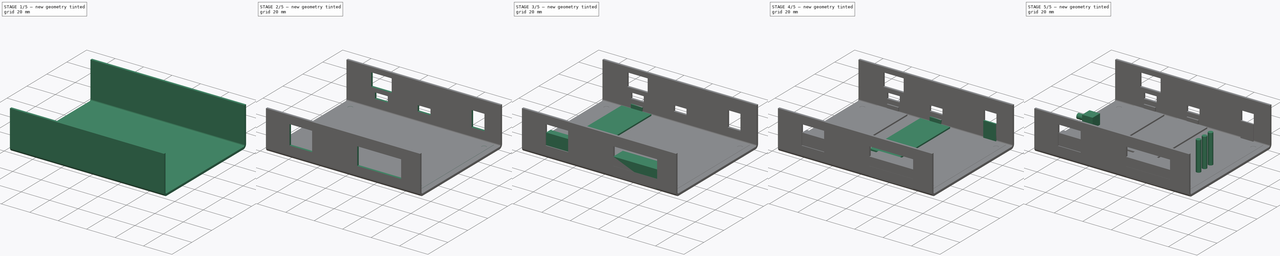
[diagram: build sequence overview — one tinted view per stage of 5, left to right]
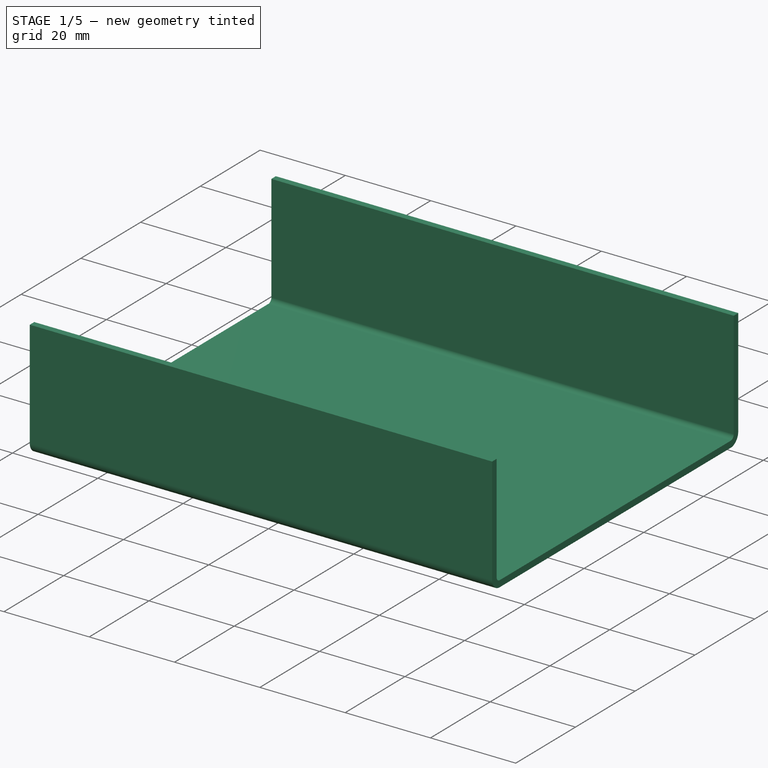
[diagram: stage 1 of 5 — iso view after this stage's code; geometry added in this stage tinted green]
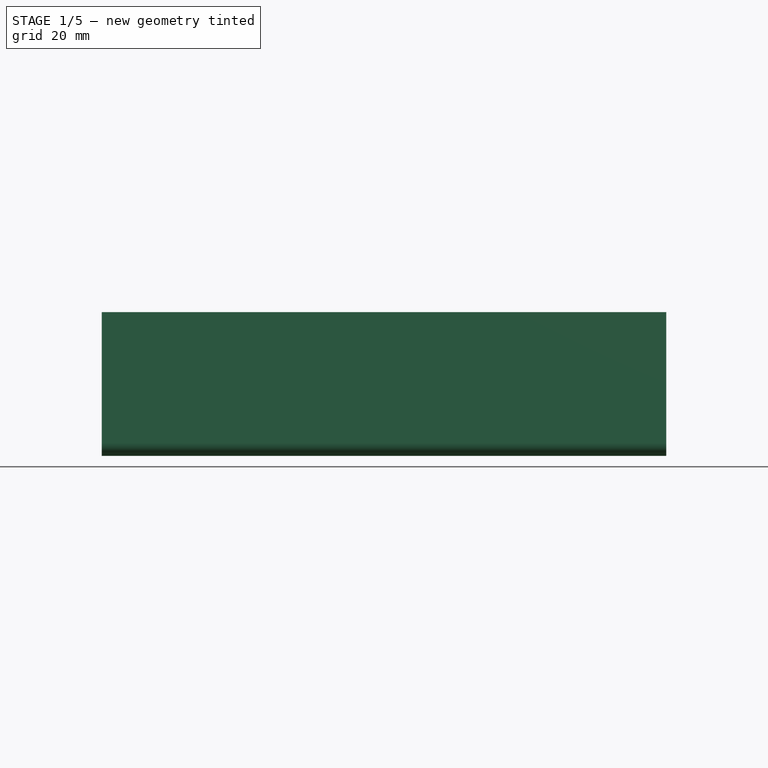
[diagram: stage 1 of 5 — front view after this stage's code; geometry added in this stage tinted green]
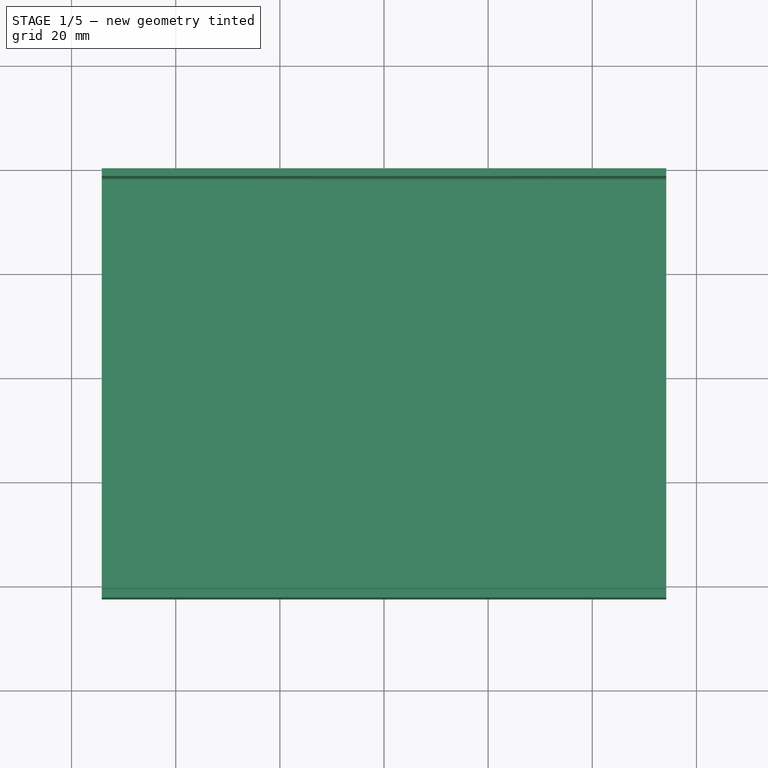
[diagram: stage 1 of 5 — top view after this stage's code; geometry added in this stage tinted green]
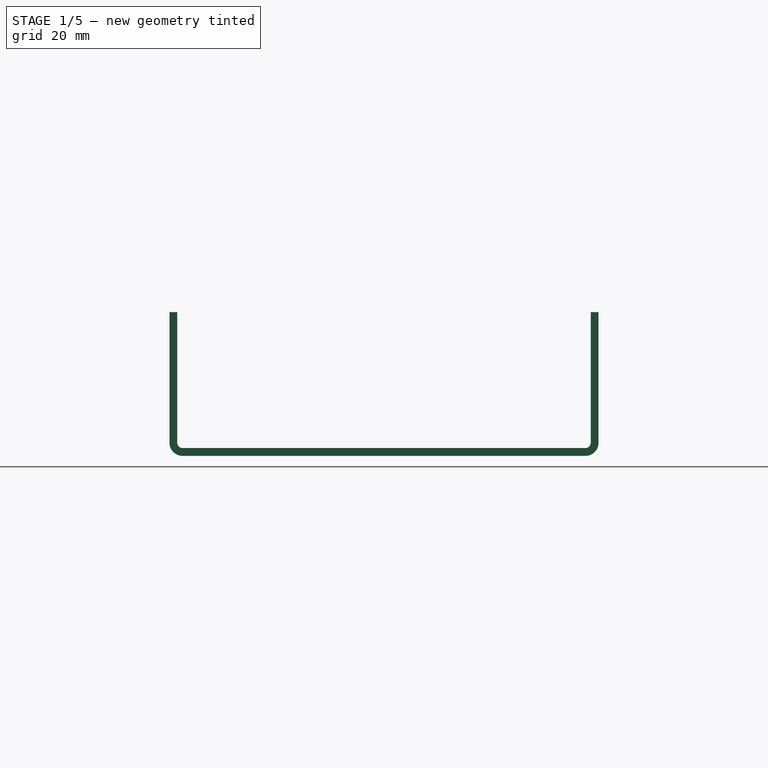
[diagram: stage 1 of 5 — right view after this stage's code; geometry added in this stage tinted green]
FCSTD DOCUMENT  (FreeCAD 0.20R29603 (Git))
Label: winners-case-v2.1
License: All rights reserved
LicenseURL: http://en.wikipedia.org/wiki/All_rights_reserved
objects: Sketcher::SketchObject×14, PartDesign::Pad×12, PartDesign::Body×3, App::Part×3, PartDesign::FeaturePython×2, PartDesign::Pocket×2, Spreadsheet::Sheet×1
note: 47 computed .brp shape members not serialized (recipe doc carries the construction recipe); baked Part::Feature solids carry a one-line shape summary decoded from their .brp

FEATURE [PartDesign::Body] Body
  Group = -> [Sketch,Pad,Sketch001,Pad001,Sketch002,Pad002,Sketch003,Pad003,Sketch004,Pad004,Sketch005,Pad005,Sketch006,Pad006,Sketch007,Pad007,Sketch008,Pad008,Sketch009,Pad009,Sketch010,Pad010]
  Origin = -> Origin
  Tip = -> Pad010
FEATURE [App::Part] Part001  label="pcb2"
  Group = -> [Body]
  Origin = -> Origin002
  Placement = pos=(0,0,6.5) rot=(0,0,1;0rad)
  expr: .Placement.Base.z = <<fig>>.sheet_thk + <<fig>>.standoff_h
FEATURE [Sketcher::SketchObject] Sketch011
  FullyConstrained = true
  MapMode = 5
  Support = -> [XY_Plane004]
  expr: Constraints[10] = <<fig>>.pcb_h2 + <<fig>>.rj45_y_ext - <<fig>>.sheet_thk
  expr: Constraints[8] = <<fig>>.pcb_w2 + <<fig>>.pb_ext - <<fig>>.sheet_thk * 0.8
  expr: Constraints[9] = <<fig>>.pcb_h2 + <<fig>>.margin
  sketch-geometry (5):
    g0: LineSegment StartX=54.2 StartY=-41 StartZ=0 EndX=54.2 EndY=38.4 EndZ=0
    g1: LineSegment StartX=54.2 StartY=38.4 StartZ=0 EndX=-54.2 EndY=38.4 EndZ=0
    g2: LineSegment StartX=-54.2 StartY=38.4 StartZ=0 EndX=-54.2 EndY=-41 EndZ=0
    g3: LineSegment StartX=-54.2 StartY=-41 StartZ=0 EndX=54.2 EndY=-41 EndZ=0
    g4: GeomPoint X=0 Y=0 Z=0
  constraints (12):
    c: Coincident(g0,g1)
    c: Coincident(g1,g2)
    c: Coincident(g2,g3)
    c: Coincident(g3,g0)
    c: Horizontal(g1)
    c: Vertical(g0)
    c: Vertical(g2)
    c: Coincident(g4,g-1)
    c: DistanceX(g1,g4) = 54.2
    c: DistanceY(g4,g1) = 38.4
    c: DistanceY(g2,g4) = 41
    c: Symmetric(g2,g0,g-2)
FEATURE [PartDesign::Pad] Pad011  label="base"
  Direction = (0,0,1)
  Length = 1.5
  Length2 = 10
  Profile = -> Sketch011
  ReferenceAxis = -> Sketch011 [N_Axis]
  Type = 0
  expr: Length = <<fig>>.sheet_thk
FEATURE [PartDesign::FeaturePython] Bend  # WARN: FeaturePython — macro-defined, semantics opaque (R4)
  AutoMiter = true
  BaseFeature = -> Pad011
  BendType = 2
  LengthList = [25.1]
  LengthSpec = 0
  ReliefFactor = 0.7
  UseReliefFactor = false
  angle = 90
  baseObject = -> Pad011 [Edge7]
  bendAList = [90]
  extend1 = 0
  extend2 = 0
  gap1 = 0
  gap2 = 0
  invert = true
  kfactor = 0.5
  length = 25.1
  maxExtendDist = 5
  minGap = 0.1
  minReliefGap = 1
  miterangle1 = 0
  miterangle2 = 0
  offset = 0
  radius = 1
  reliefType = 0
  reliefd = 1
  reliefw = 0.8
  sketchflip = false
  sketchinvert = false
  unfold = false
  expr: length = <<fig>>.sheet_thk + <<fig>>.standoff_h + <<fig>>.pcb_thk + <<fig>>.led_tall - <<fig>>.sheet_thk - <<fig>>.sheet_bend_add
FEATURE [PartDesign::FeaturePython] Bend001  # WARN: FeaturePython — macro-defined, semantics opaque (R4)
  AutoMiter = true
  BaseFeature = -> Bend
  BendType = 2
  LengthList = [25.1]
  LengthSpec = 0
  ReliefFactor = 0.7
  UseReliefFactor = false
  angle = 90
  baseObject = -> Bend [Edge24]
  bendAList = [90]
  extend1 = 0
  extend2 = 0
  gap1 = 0
  gap2 = 0
  invert = true
  kfactor = 0.5
  length = 25.1
  maxExtendDist = 5
  minGap = 0.1
  minReliefGap = 1
  miterangle1 = 0
  miterangle2 = 0
  offset = 0
  radius = 1
  reliefType = 0
  reliefd = 1
  reliefw = 0.8
  sketchflip = false
  sketchinvert = false
  unfold = false
  expr: length = <<fig>>.sheet_thk + <<fig>>.standoff_h + <<fig>>.pcb_thk + <<fig>>.led_tall - <<fig>>.sheet_thk - <<fig>>.sheet_bend_add
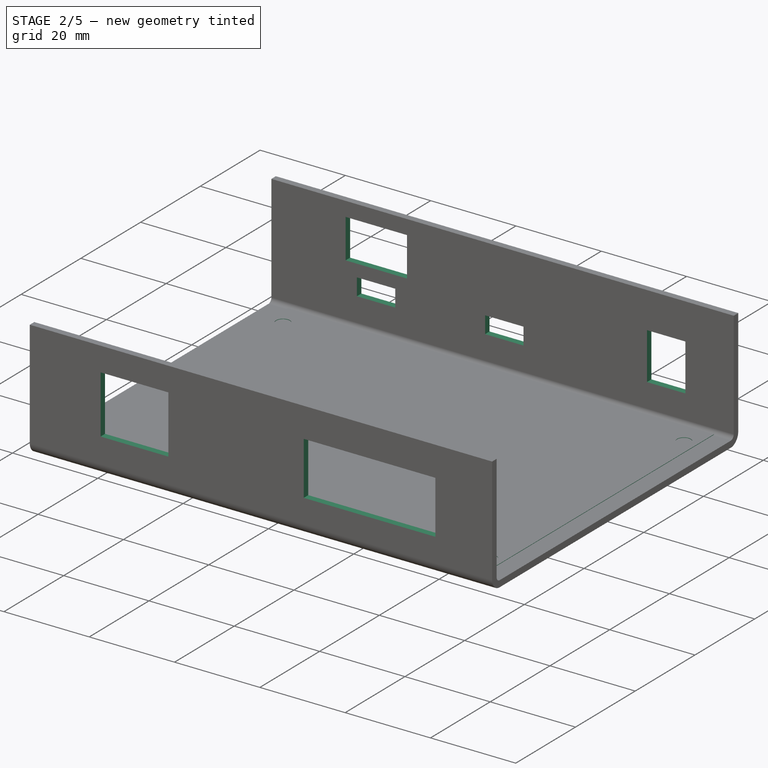
[diagram: stage 2 of 5 — iso view after this stage's code; geometry added in this stage tinted green]
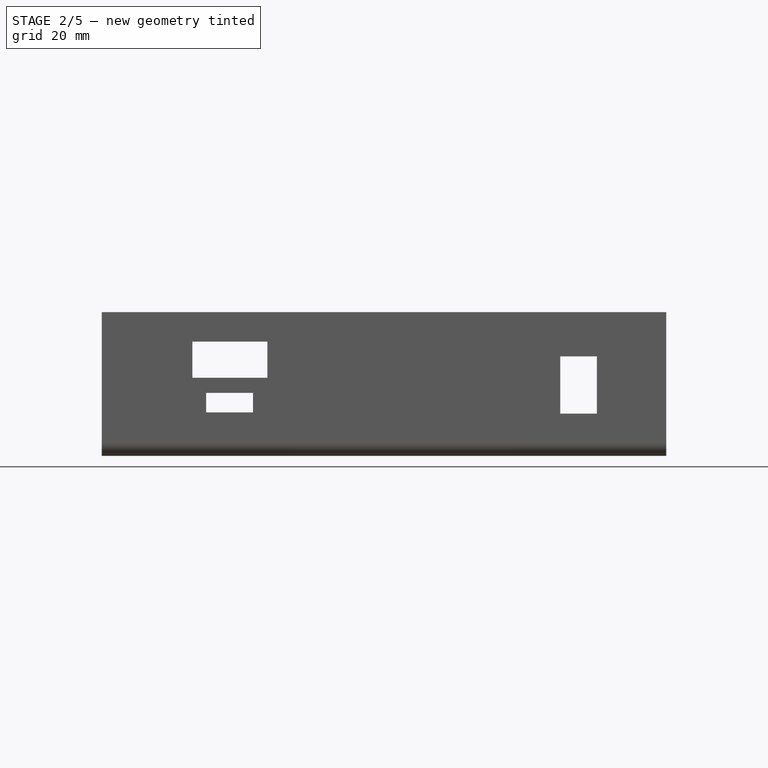
[diagram: stage 2 of 5 — front view after this stage's code; geometry added in this stage tinted green]
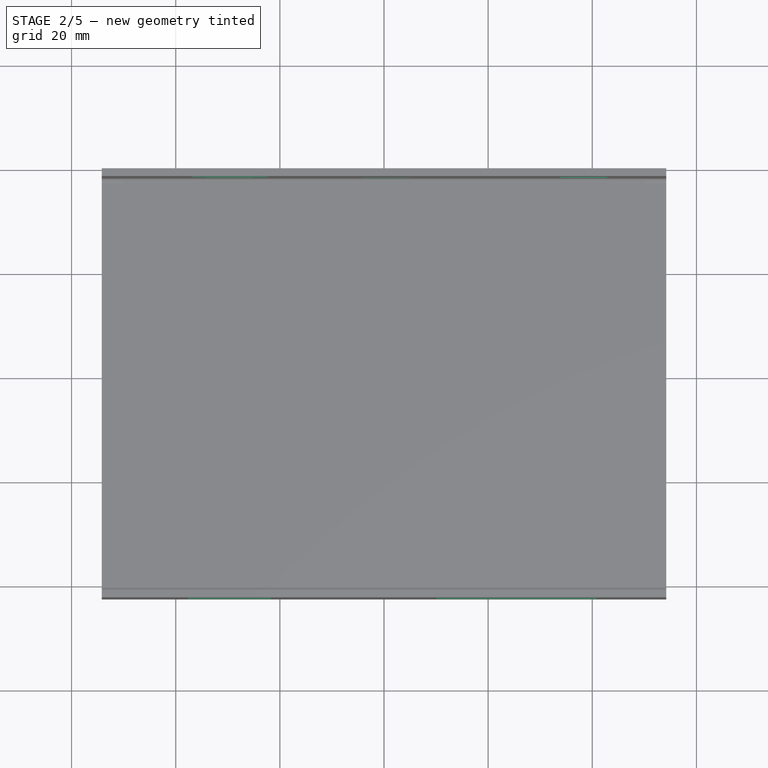
[diagram: stage 2 of 5 — top view after this stage's code; geometry added in this stage tinted green]
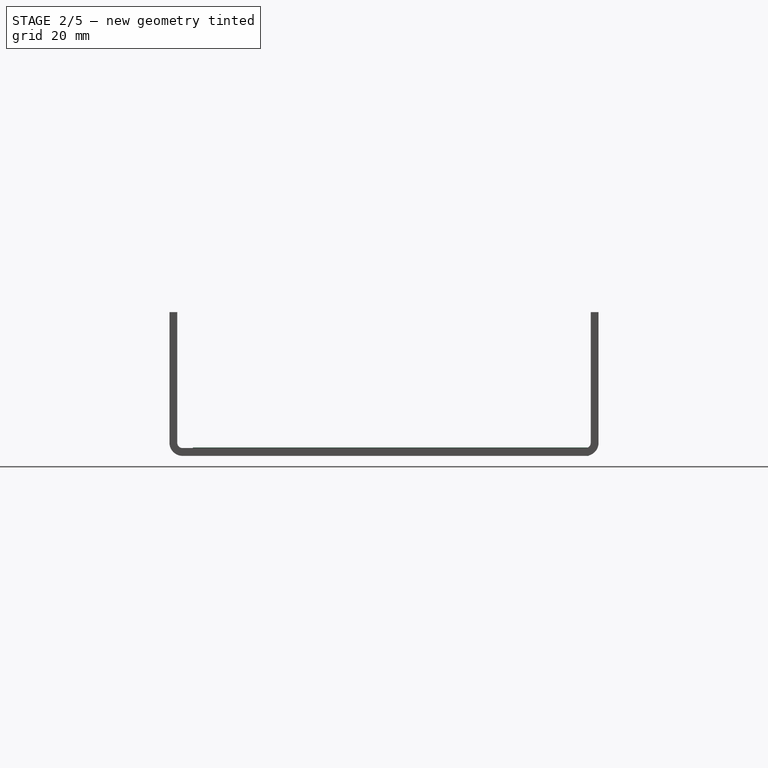
[diagram: stage 2 of 5 — right view after this stage's code; geometry added in this stage tinted green]
FEATURE [Sketcher::SketchObject] Sketch
  FullyConstrained = true
  MapMode = 5
  Support = -> [XY_Plane]
  expr: .Constraints.pcb_h = <<fig>>.pcb_h
  expr: .Constraints.pcb_hole_bottom = <<fig>>.pcb_hole_bottom
  expr: .Constraints.pcb_hole_left = <<fig>>.pcb_hole_left
  expr: .Constraints.pcb_hole_r = <<fig>>.pcb_hole_r
  expr: .Constraints.pcb_hole_right = <<fig>>.pcb_hole_right
  expr: .Constraints.pcb_hole_top = <<fig>>.pcb_hole_top
  expr: .Constraints.pcb_w = <<fig>>.pcb_w
  sketch-geometry (9):
    g0: LineSegment StartX=50 StartY=-38 StartZ=0 EndX=50 EndY=38 EndZ=0
    g1: LineSegment StartX=50 StartY=38 StartZ=0 EndX=-50 EndY=38 EndZ=0
    g2: LineSegment StartX=-50 StartY=38 StartZ=0 EndX=-50 EndY=-38 EndZ=0
    g3: LineSegment StartX=-50 StartY=-38 StartZ=0 EndX=50 EndY=-38 EndZ=0
    g4: GeomPoint X=0 Y=0 Z=0
    g5: Circle CenterX=-47 CenterY=32 CenterZ=0 NormalX=0 NormalY=0 NormalZ=1 AngleXU=0 Radius=1.6
    g6: Circle CenterX=47 CenterY=32 CenterZ=0 NormalX=0 NormalY=0 NormalZ=1 AngleXU=0 Radius=1.6
    g7: Circle CenterX=-47 CenterY=-33 CenterZ=0 NormalX=0 NormalY=0 NormalZ=1 AngleXU=0 Radius=1.6
    g8: Circle CenterX=47 CenterY=-33 CenterZ=0 NormalX=0 NormalY=0 NormalZ=1 AngleXU=0 Radius=1.6
  constraints (24):
    c: Coincident(g0,g1)
    c: Coincident(g1,g2)
    c: Coincident(g2,g3)
    c: Coincident(g3,g0)
    c: Horizontal(g1)
    c: Horizontal(g3)
    c: Vertical(g0)
    c: Vertical(g2)
    c: Symmetric(g1,g0,g4)
    c: Coincident(g4,g-1)
    c: DistanceX(g1,g1) = 100  'pcb_w'
    c: DistanceY(g0,g0) = 76  'pcb_h'
    c: Radius(g5) = 1.6  'pcb_hole_r'
    c: Equal(g5,g6)
    c: Equal(g6,g8)
    c: Equal(g8,g7)
    c: DistanceX(g1,g5) = 3  'pcb_hole_left'
    c: DistanceY(g5,g1) = 6  'pcb_hole_top'
    c: DistanceX(g6,g0) = 3  'pcb_hole_right'
    c: DistanceY(g2,g7) = 5  'pcb_hole_bottom'
    c: Horizontal(g6,g5)
    c: Vertical(g5,g7)
    c: Vertical(g6,g8)
    c: Horizontal(g7,g8)
FEATURE [Spreadsheet::Sheet] Spreadsheet  label="fig"
  cells = A2=margin; B2(margin)=0.4; A3=pcb_surface_z; B3(pcb_surface_z)==sheet_thk + standoff_h + pcb_thk; A4=pcb_w; B4(pcb_w)=100; A5=pcb_w2; B5(pcb_w2)=50; A6=pcb_h; B6(pcb_h)=76; A7=pcb_h2; B7(pcb_h2)==76 / 2; A8=pcb_thk; B8(pcb_thk)=1.6; A9=pcb_hole_left; B9(pcb_hole_left)=3; A10=pcb_hole_right; B10(pcb_hole_right)=3; A11=pcb_hole_top; B11(pcb_hole_top)=6; A12=pcb_hole_bottom; B12(pcb_hole_bottom)=5; A13=pcb_hole_r; B13(pcb_hole_r)=1.6; A14=standoff_h; B14(standoff_h)=5; A15=standoff_tab_r; B15(standoff_tab_r)=1.6; A16=standoff_r; B16(standoff_r)=2.5; A17=rj45_w; B17(rj45_w)=15.9; A18=rj45_h; B18(rj45_h)=13.6; A19=rj45_bottom_margin; B19(rj45_bottom_margin)=0.25; A20=rj45_y_ext; B20(rj45_y_ext)=4.5; A21=w5500_top; B21(w5500_top)=0.48; A22=w5500_left; B22(w5500_left)=9.85; A23=w5500_h; B23(w5500_h)=75; A24=w5500_w; B24(w5500_w)=21; A25=w5500_thk; B25(w5500_thk)=1; A26=pico_left; B26(pico_left)=39.9; A27=pico_h; B27(pico_h)=51; A28=pico_w; B28(pico_w)=21; A29=usb_w; B29(usb_w)=8; A30=usb_h; B30(usb_h)=3; A31=usb_bottom_margin; B31(usb_bottom_margin)=-0.5; A32=usb_margin; B32(usb_margin)=0.5; A33=usb_ext; B33(usb_ext)=1; A34=db9_w; B34(db9_w)=30.84; A35=db9_h; B35(db9_h)=12.5; A36=db9_support_to_face; B36(db9_support_to_face)=9.52; A37=db9_support_dist; B37(db9_support_dist)=25; A38=db9_support_to_side; B38(db9_support_to_side)=2.92; A39=db9_left; B39(db9_left)=62.96; A40=db9_bottom; B40(db9_bottom)=5.07; A41=db9_right; B41(db9_right)=12.14; A42=barrel_w; B42(barrel_w)=9; A43=barrel_h; B43(barrel_h)=11; A44=barrel_ext; B44(barrel_ext)=1.1; A45=barrel_bottom_margin; B45(barrel_bottom_margin)=-0.2; A46=barrel_support_to_face; B46(barrel_support_to_face)=0; A47=barrel_right; B47(barrel_right)=7.15; A48=pb_h; B48(pb_h)=7.4; A49=pb_w; B49(pb_w)=7.4; A50=pb_tall; B50(pb_tall)=7.2; A51=pb_r; B51(pb_r)==3.6 / 2; A52=pb_top; B52(pb_top)=31.3; A53=pb_ext; B53(pb_ext)=5.4; A54=led_r; B54(led_r)==3.2 / 2; A55=led1_bottom; B55(led1_bottom)=37; A56=led2_bottom; B56(led2_bottom)=31; A57=led3_bottom; B57(led3_bottom)=25; A58=led_right; B58(led_right)=9.800000000000001; A59=led_tall; B59(led_tall)=20.5; A60=led_dist; B60(led_dist)=6; A61=sheet_thk; B61(sheet_thk)=1.5; A62=sheet_bend_add; B62(sheet_bend_add)=2; A63=sheet_wing2wall; B63(sheet_wing2wall)=12; A64=rsw_w; B64(rsw_w)=14.4; A65=rsw_h; B65(rsw_h)=9.199999999999999
FEATURE [PartDesign::Pad] Pad  label="pcb"
  Direction = (0,0,1)
  Length = 1.6
  Length2 = 10
  Profile = -> Sketch
  ReferenceAxis = -> Sketch [N_Axis]
  Type = 0
  expr: Length = <<fig>>.pcb_thk
FEATURE [Sketcher::SketchObject] Sketch012
  AttachmentOffset = pos=(0,0,44) rot=(0,0,1;0rad)
  FullyConstrained = true
  MapMode = 5
  Placement = pos=(0,-44,-9.8e-15) rot=(1,0,0;1.5708rad)
  Support = -> [XZ_Plane004]
  expr: .AttachmentOffset.Base.z = <<fig>>.pcb_h2 + <<fig>>.rj45_y_ext + <<fig>>.sheet_thk
  expr: Constraints[18] = <<fig>>.sheet_thk + <<fig>>.standoff_h + <<fig>>.pcb_thk
  expr: Constraints[19] = <<fig>>.db9_h
  expr: Constraints[20] = <<fig>>.db9_w
  expr: Constraints[21] = <<fig>>.db9_left - <<fig>>.db9_support_to_side - <<fig>>.pcb_w / 2
  expr: Constraints[22] = <<fig>>.rj45_w
  expr: Constraints[23] = <<fig>>.rj45_h
  expr: Constraints[24] = <<fig>>.sheet_thk + <<fig>>.standoff_h + <<fig>>.pcb_thk + <<fig>>.rj45_bottom_margin
  expr: Constraints[25] = <<fig>>.pcb_w / 2 - <<fig>>.w5500_left - <<fig>>.w5500_w + (<<fig>>.w5500_w - <<fig>>.rj45_w) / 2
  sketch-geometry (10):
    g0: LineSegment StartX=10.04 StartY=20.6 StartZ=0 EndX=10.04 EndY=8.1 EndZ=0
    g1: LineSegment StartX=10.04 StartY=8.1 StartZ=0 EndX=40.88 EndY=8.1 EndZ=0
    g2: LineSegment StartX=40.88 StartY=8.1 StartZ=0 EndX=40.88 EndY=20.6 EndZ=0
    g3: LineSegment StartX=40.88 StartY=20.6 StartZ=0 EndX=10.04 EndY=20.6 EndZ=0
    g4: GeomPoint X=25.46 Y=14.35 Z=0
    g5: LineSegment StartX=-37.6 StartY=21.95 StartZ=0 EndX=-37.6 EndY=8.35 EndZ=0
    g6: LineSegment StartX=-37.6 StartY=8.35 StartZ=0 EndX=-21.7 EndY=8.35 EndZ=0
    g7: LineSegment StartX=-21.7 StartY=8.35 StartZ=0 EndX=-21.7 EndY=21.95 EndZ=0
    g8: LineSegment StartX=-21.7 StartY=21.95 StartZ=0 EndX=-37.6 EndY=21.95 EndZ=0
    g9: GeomPoint X=-29.65 Y=15.15 Z=0
  constraints (26):
    c: Coincident(g0,g1)
    c: Coincident(g1,g2)
    c: Coincident(g2,g3)
    c: Coincident(g3,g0)
    c: Horizontal(g1)
    c: Horizontal(g3)
    c: Vertical(g0)
    c: Vertical(g2)
    c: Symmetric(g1,g0,g4)
    c: Coincident(g5,g6)
    c: Coincident(g6,g7)
    c: Coincident(g7,g8)
    c: Coincident(g8,g5)
    c: Horizontal(g6)
    c: Horizontal(g8)
    c: Vertical(g5)
    c: Vertical(g7)
    c: Symmetric(g6,g5,g9)
    c: DistanceY(g-1,g0) = 8.1
    c: DistanceY(g0,g0) = 12.5
    c: DistanceX(g3,g3) = 30.84
    c: DistanceX(g-1,g0) = 10.04
    c: DistanceX(g6,g6) = 15.9
    c: DistanceY(g7,g7) = 13.6
    c: DistanceY(g-1,g6) = 8.35
    c: DistanceX(g6,g-1) = 21.7
FEATURE [PartDesign::Pocket] Pocket
  BaseFeature = -> Bend001
  Direction = (0,1,2e-16)
  Length = 5
  Length2 = 5
  Profile = -> Sketch012
  ReferenceAxis = -> Sketch012 [N_Axis]
  Type = 0
FEATURE [Sketcher::SketchObject] Sketch013
  AttachmentOffset = pos=(0,0,-39.9) rot=(0,0,1;0rad)
  FullyConstrained = true
  MapMode = 5
  Placement = pos=(0,39.9,8.9e-15) rot=(1,0,0;1.5708rad)
  Support = -> [XZ_Plane004]
  expr: .AttachmentOffset.Base.z = -<<fig>>.pcb_h2 - <<fig>>.sheet_thk - <<fig>>.margin
  expr: Constraints[32] = <<fig>>.barrel_w
  expr: Constraints[33] = <<fig>>.barrel_h
  expr: Constraints[34] = <<fig>>.sheet_thk + <<fig>>.standoff_h + <<fig>>.pcb_thk
  expr: Constraints[35] = <<fig>>.pcb_w2 - <<fig>>.barrel_w - <<fig>>.barrel_right
  expr: Constraints[36] = <<fig>>.usb_w + <<fig>>.usb_margin * 2
  expr: Constraints[37] = <<fig>>.usb_h + <<fig>>.usb_margin * 2
  expr: Constraints[38] = <<fig>>.pcb_surface_z + <<fig>>.w5500_thk + <<fig>>.usb_bottom_margin - <<fig>>.usb_margin
  expr: Constraints[39] = <<fig>>.pcb_w / 2 - <<fig>>.pico_left - (<<fig>>.pico_w - <<fig>>.usb_w) / 2 + <<fig>>.usb_margin
  expr: Constraints[40] = <<fig>>.pcb_w / 2 - <<fig>>.w5500_left - (<<fig>>.w5500_w - <<fig>>.usb_w) / 2 + <<fig>>.usb_margin
  expr: Constraints[41] = <<fig>>.rsw_w
  expr: Constraints[42] = <<fig>>.rsw_h
  sketch-geometry (16):
    g0: LineSegment StartX=33.85 StartY=19.1 StartZ=0 EndX=42.85 EndY=19.1 EndZ=0
    g1: LineSegment StartX=42.85 StartY=19.1 StartZ=0 EndX=42.85 EndY=8.1 EndZ=0
    g2: LineSegment StartX=42.85 StartY=8.1 StartZ=0 EndX=33.85 EndY=8.1 EndZ=0
    g3: LineSegment StartX=33.85 StartY=8.1 StartZ=0 EndX=33.85 EndY=19.1 EndZ=0
    g4: LineSegment StartX=-4.1 StartY=12.1 StartZ=0 EndX=4.9 EndY=12.1 EndZ=0
    g5: LineSegment StartX=4.9 StartY=12.1 StartZ=0 EndX=4.9 EndY=8.1 EndZ=0
    g6: LineSegment StartX=4.9 StartY=8.1 StartZ=0 EndX=-4.1 EndY=8.1 EndZ=0
    g7: LineSegment StartX=-4.1 StartY=8.1 StartZ=0 EndX=-4.1 EndY=12.1 EndZ=0
    g8: LineSegment StartX=-34.15 StartY=12.1 StartZ=0 EndX=-25.15 EndY=12.1 EndZ=0
    g9: LineSegment StartX=-25.15 StartY=12.1 StartZ=0 EndX=-25.15 EndY=8.1 EndZ=0
    g10: LineSegment StartX=-25.15 StartY=8.1 StartZ=0 EndX=-34.15 EndY=8.1 EndZ=0
    g11: LineSegment StartX=-34.15 StartY=8.1 StartZ=0 EndX=-34.15 EndY=12.1 EndZ=0
    g12: LineSegment StartX=-36.8 StartY=24.2 StartZ=0 EndX=-22.4 EndY=24.2 EndZ=0
    g13: LineSegment StartX=-22.4 StartY=24.2 StartZ=0 EndX=-22.4 EndY=15 EndZ=0
    g14: LineSegment StartX=-22.4 StartY=15 StartZ=0 EndX=-36.8 EndY=15 EndZ=0
    g15: LineSegment StartX=-36.8 StartY=15 StartZ=0 EndX=-36.8 EndY=24.2 EndZ=0
  constraints (48):
    c: Coincident(g0,g1)
    c: Coincident(g1,g2)
    c: Coincident(g2,g3)
    c: Coincident(g3,g0)
    c: Horizontal(g0)
    c: Horizontal(g2)
    c: Vertical(g1)
    c: Vertical(g3)
    c: Coincident(g4,g5)
    c: Coincident(g5,g6)
    c: Coincident(g6,g7)
    c: Coincident(g7,g4)
    c: Horizontal(g4)
    c: Horizontal(g6)
    c: Vertical(g5)
    c: Vertical(g7)
    c: Coincident(g8,g9)
    c: Coincident(g9,g10)
    c: Coincident(g10,g11)
    c: Coincident(g11,g8)
    c: Horizontal(g8)
    c: Horizontal(g10)
    c: Vertical(g9)
    c: Vertical(g11)
    c: Coincident(g12,g13)
    c: Coincident(g13,g14)
    c: Coincident(g14,g15)
    c: Coincident(g15,g12)
    c: Horizontal(g12)
    c: Horizontal(g14)
    c: Vertical(g13)
    c: Vertical(g15)
    c: DistanceX(g2,g2) = 9
    c: DistanceY(g3,g3) = 11
    c: DistanceY(g-1,g2) = 8.1
    c: DistanceX(g-1,g2) = 33.85
    c: DistanceX(g6,g6) = 9
    c: DistanceY(g5,g5) = 4
    c: DistanceY(g-1,g5) = 8.1
    c: DistanceX(g6,g-1) = 4.1
    c: DistanceX(g10,g-1) = 34.15
    c: DistanceX(g12,g12) = 14.4
    c: DistanceY(g13,g13) = 9.2
    c: DistanceX(g13,g-1) = 22.4
    c: DistanceY(g-1,g13) = 15
    c: Equal(g7,g9)
    c: Equal(g4,g8)
    c: Horizontal(g6,g9)
FEATURE [PartDesign::Pocket] Pocket001
  BaseFeature = -> Pocket
  Direction = (0,1,2e-16)
  Length = 1.5
  Length2 = 5
  Profile = -> Sketch013
  ReferenceAxis = -> Sketch013 [N_Axis]
  Reversed = true
  Type = 0
  expr: Length = <<fig>>.sheet_thk
FEATURE [PartDesign::Body] Body001  label="base-sheet"
  Group = -> [Sketch011,Pad011,Bend,Bend001,Sketch012,Pocket,Sketch013,Pocket001]
  Origin = -> Origin004
  Tip = -> Pocket001
FEATURE [App::Part] Part  label="part-base"
  Group = -> [Body001]
  Origin = -> Origin003
FEATURE [PartDesign::Body] Body002  label="base-sheet2"
  Origin = -> Origin006
FEATURE [App::Part] Part002  label="part-base2"
  Group = -> [Body002]
  Origin = -> Origin005
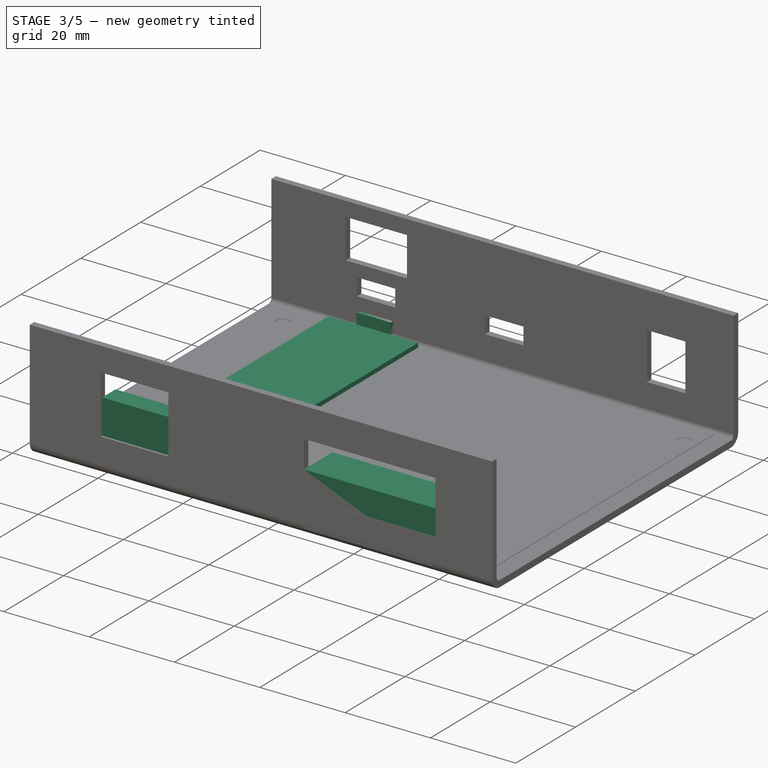
[diagram: stage 3 of 5 — iso view after this stage's code; geometry added in this stage tinted green]
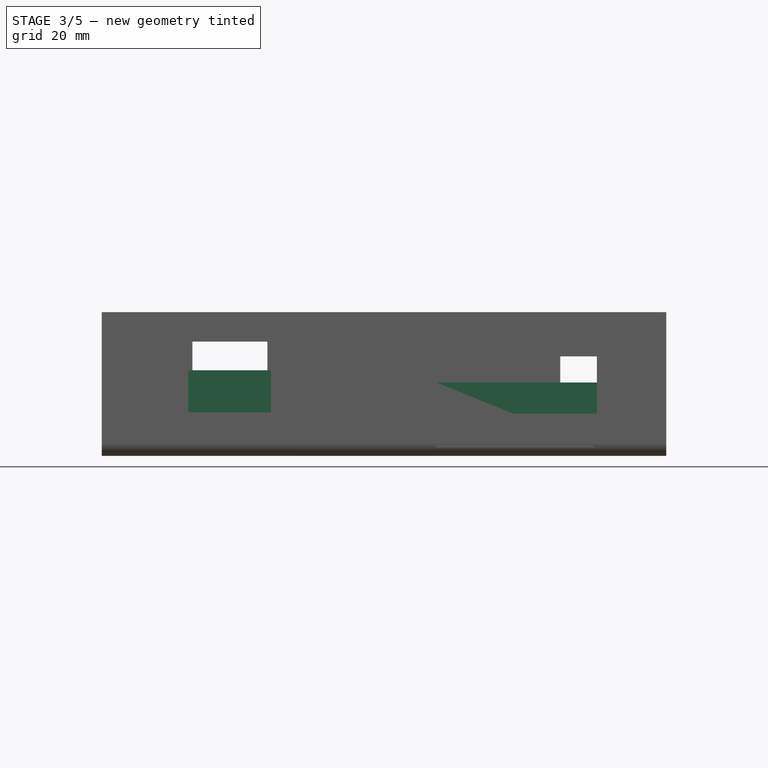
[diagram: stage 3 of 5 — front view after this stage's code; geometry added in this stage tinted green]
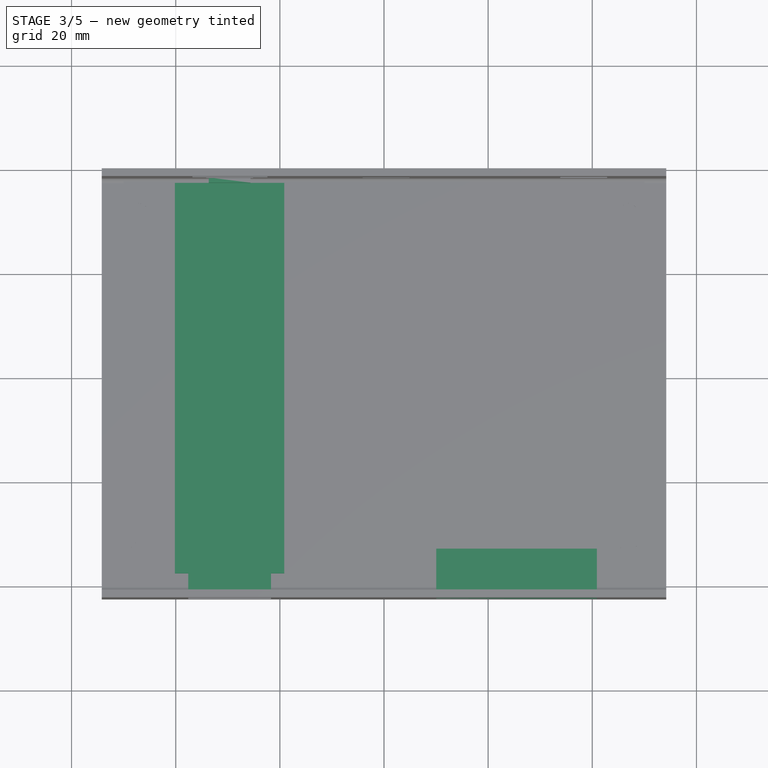
[diagram: stage 3 of 5 — top view after this stage's code; geometry added in this stage tinted green]
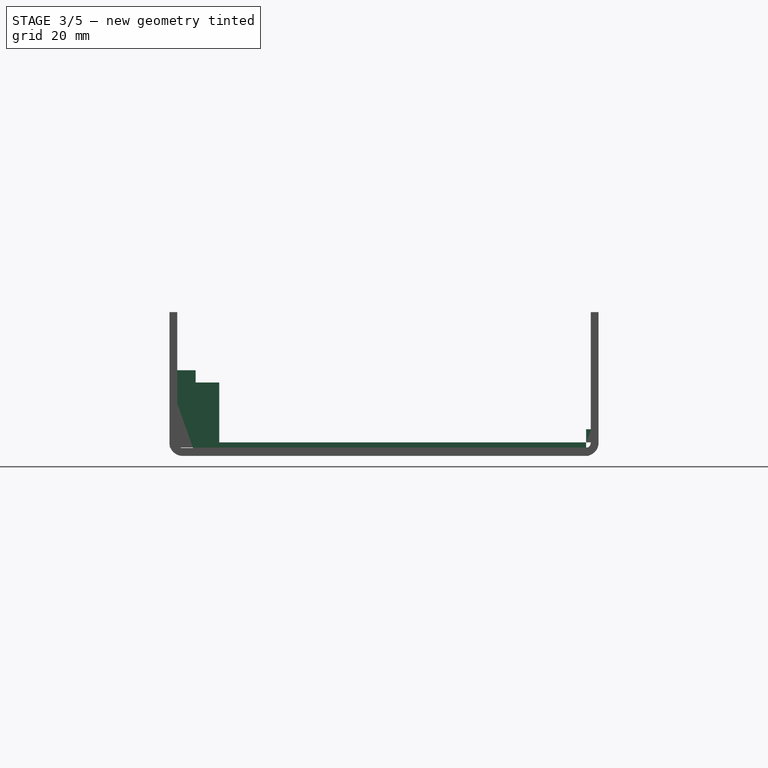
[diagram: stage 3 of 5 — right view after this stage's code; geometry added in this stage tinted green]
FEATURE [Sketcher::SketchObject] Sketch001
  AttachmentOffset = pos=(0,0,1.6) rot=(0,0,1;0rad)
  FullyConstrained = true
  MapMode = 5
  Placement = pos=(0,0,1.6) rot=(0,0,1;0rad)
  Support = -> [XY_Plane]
  expr: .AttachmentOffset.Base.z = <<fig>>.pcb_thk
  expr: .Constraints.w5500_h = <<fig>>.w5500_h
  expr: Constraints[10] = <<fig>>.pcb_w / 2 - <<fig>>.w5500_left
  expr: Constraints[11] = <<fig>>.pcb_h / 2 - 0.48
  expr: Constraints[8] = <<fig>>.w5500_w
  sketch-geometry (4):
    g0: LineSegment StartX=-40.15 StartY=37.52 StartZ=0 EndX=-19.15 EndY=37.52 EndZ=0
    g1: LineSegment StartX=-19.15 StartY=37.52 StartZ=0 EndX=-19.15 EndY=-37.48 EndZ=0
    g2: LineSegment StartX=-19.15 StartY=-37.48 StartZ=0 EndX=-40.15 EndY=-37.48 EndZ=0
    g3: LineSegment StartX=-40.15 StartY=-37.48 StartZ=0 EndX=-40.15 EndY=37.52 EndZ=0
  constraints (12):
    c: Coincident(g0,g1)
    c: Coincident(g1,g2)
    c: Coincident(g2,g3)
    c: Coincident(g3,g0)
    c: Horizontal(g0)
    c: Horizontal(g2)
    c: Vertical(g1)
    c: Vertical(g3)
    c: DistanceX(g2,g2) = 21
    c: DistanceY(g1,g1) = 75  'w5500_h'
    c: DistanceX(g0,g-1) = 40.15
    c: DistanceY(g-1,g0) = 37.52
FEATURE [PartDesign::Pad] Pad001  label="w5500-pcb"
  BaseFeature = -> Pad
  Direction = (0,0,1)
  Length = 1
  Length2 = 10
  Profile = -> Sketch001
  ReferenceAxis = -> Sketch001 [N_Axis]
  Type = 0
  expr: Length = <<fig>>.w5500_thk
FEATURE [Sketcher::SketchObject] Sketch002
  AttachmentOffset = pos=(0,0,2.59) rot=(0,0,1;0rad)
  FullyConstrained = true
  MapMode = 5
  Placement = pos=(0,0,2.59) rot=(0,0,1;0rad)
  Support = -> [XY_Plane]
  expr: .AttachmentOffset.Base.z = <<fig>>.pcb_thk + <<fig>>.w5500_thk - 0.01
  expr: .Constraints.rj45_w = <<fig>>.rj45_w
  expr: Constraints[10] = <<fig>>.w5500_top + <<fig>>.w5500_h - <<fig>>.pcb_h / 2
  expr: Constraints[11] = <<fig>>.pcb_w / 2 - <<fig>>.w5500_left - <<fig>>.w5500_w + (<<fig>>.w5500_w - <<fig>>.rj45_w) / 2
  expr: Constraints[9] = <<fig>>.rj45_y_ext
  sketch-geometry (4):
    g0: LineSegment StartX=-37.6 StartY=-37.48 StartZ=0 EndX=-21.7 EndY=-37.48 EndZ=0
    g1: LineSegment StartX=-21.7 StartY=-37.48 StartZ=0 EndX=-21.7 EndY=-41.98 EndZ=0
    g2: LineSegment StartX=-21.7 StartY=-41.98 StartZ=0 EndX=-37.6 EndY=-41.98 EndZ=0
    g3: LineSegment StartX=-37.6 StartY=-41.98 StartZ=0 EndX=-37.6 EndY=-37.48 EndZ=0
  constraints (12):
    c: Coincident(g0,g1)
    c: Coincident(g1,g2)
    c: Coincident(g2,g3)
    c: Coincident(g3,g0)
    c: Horizontal(g0)
    c: Horizontal(g2)
    c: Vertical(g1)
    c: Vertical(g3)
    c: DistanceX(g0,g0) = 15.9  'rj45_w'
    c: DistanceY(g1,g1) = 4.5
    c: DistanceY(g0,g-1) = 37.48
    c: DistanceX(g0,g-1) = 21.7
FEATURE [PartDesign::Pad] Pad002  label="w5500-rj45"
  BaseFeature = -> Pad001
  Direction = (0,0,1)
  Length = 13.85
  Length2 = 10
  Profile = -> Sketch002
  ReferenceAxis = -> Sketch002 [N_Axis]
  Type = 0
  expr: Length = <<fig>>.rj45_bottom_margin + <<fig>>.rj45_h
FEATURE [Sketcher::SketchObject] Sketch003
  AttachmentOffset = pos=(0,0,2.599) rot=(0,0,1;0rad)
  FullyConstrained = true
  MapMode = 5
  Placement = pos=(0,0,2.599) rot=(0,0,1;0rad)
  Support = -> [XY_Plane]
  expr: .AttachmentOffset.Base.z = <<fig>>.pcb_thk + <<fig>>.w5500_thk - 0.001
  expr: Constraints[10] = <<fig>>.pcb_w / 2 - <<fig>>.w5500_left - (<<fig>>.w5500_w - <<fig>>.usb_w) / 2
  expr: Constraints[11] = <<fig>>.pcb_h / 2 - <<fig>>.w5500_top
  expr: Constraints[8] = <<fig>>.usb_ext
  expr: Constraints[9] = <<fig>>.usb_w
  sketch-geometry (4):
    g0: LineSegment StartX=-33.65 StartY=38.52 StartZ=0 EndX=-25.65 EndY=38.52 EndZ=0
    g1: LineSegment StartX=-25.65 StartY=38.52 StartZ=0 EndX=-25.65 EndY=37.52 EndZ=0
    g2: LineSegment StartX=-25.65 StartY=37.52 StartZ=0 EndX=-33.65 EndY=37.52 EndZ=0
    g3: LineSegment StartX=-33.65 StartY=37.52 StartZ=0 EndX=-33.65 EndY=38.52 EndZ=0
  constraints (12):
    c: Coincident(g0,g1)
    c: Coincident(g1,g2)
    c: Coincident(g2,g3)
    c: Coincident(g3,g0)
    c: Horizontal(g0)
    c: Horizontal(g2)
    c: Vertical(g1)
    c: Vertical(g3)
    c: DistanceY(g1,g1) = 1
    c: DistanceX(g2,g2) = 8
    c: DistanceX(g2,g-1) = 33.65
    c: DistanceY(g-1,g1) = 37.52
FEATURE [PartDesign::Pad] Pad003  label="w5500-usb"
  BaseFeature = -> Pad002
  Direction = (0,0,1)
  Length = 2.5
  Length2 = 10
  Profile = -> Sketch003
  ReferenceAxis = -> Sketch003 [N_Axis]
  Type = 0
  expr: Length = <<fig>>.usb_bottom_margin + <<fig>>.usb_h
FEATURE [Sketcher::SketchObject] Sketch004
  AttachmentOffset = pos=(0,0,1.6) rot=(0,0,1;0rad)
  FullyConstrained = true
  MapMode = 5
  Placement = pos=(0,0,1.6) rot=(0,0,1;0rad)
  Support = -> [XY_Plane]
  expr: .AttachmentOffset.Base.z = <<fig>>.pcb_thk
  expr: Constraints[10] = <<fig>>.db9_left - <<fig>>.db9_support_to_side - <<fig>>.pcb_w / 2
  expr: Constraints[11] = <<fig>>.pcb_h / 2 - <<fig>>.db9_bottom
  expr: Constraints[8] = <<fig>>.db9_w
  expr: Constraints[9] = <<fig>>.db9_support_to_face
  sketch-geometry (4):
    g0: LineSegment StartX=10.04 StartY=-32.93 StartZ=0 EndX=40.88 EndY=-32.93 EndZ=0
    g1: LineSegment StartX=40.88 StartY=-32.93 StartZ=0 EndX=40.88 EndY=-42.45 EndZ=0
    g2: LineSegment StartX=40.88 StartY=-42.45 StartZ=0 EndX=10.04 EndY=-42.45 EndZ=0
    g3: LineSegment StartX=10.04 StartY=-42.45 StartZ=0 EndX=10.04 EndY=-32.93 EndZ=0
  constraints (12):
    c: Coincident(g0,g1)
    c: Coincident(g1,g2)
    c: Coincident(g2,g3)
    c: Coincident(g3,g0)
    c: Horizontal(g0)
    c: Horizontal(g2)
    c: Vertical(g1)
    c: Vertical(g3)
    c: DistanceX(g0,g0) = 30.84
    c: DistanceY(g3,g3) = 9.52
    c: DistanceX(g-1,g0) = 10.04
    c: DistanceY(g0,g-1) = 32.93
FEATURE [PartDesign::Pad] Pad004  label="DB9"
  BaseFeature = -> Pad003
  Direction = (0,0,1)
  Length = 12.5
  Length2 = 10
  Profile = -> Sketch004
  ReferenceAxis = -> Sketch004 [N_Axis]
  Type = 0
  expr: Length = <<fig>>.db9_h
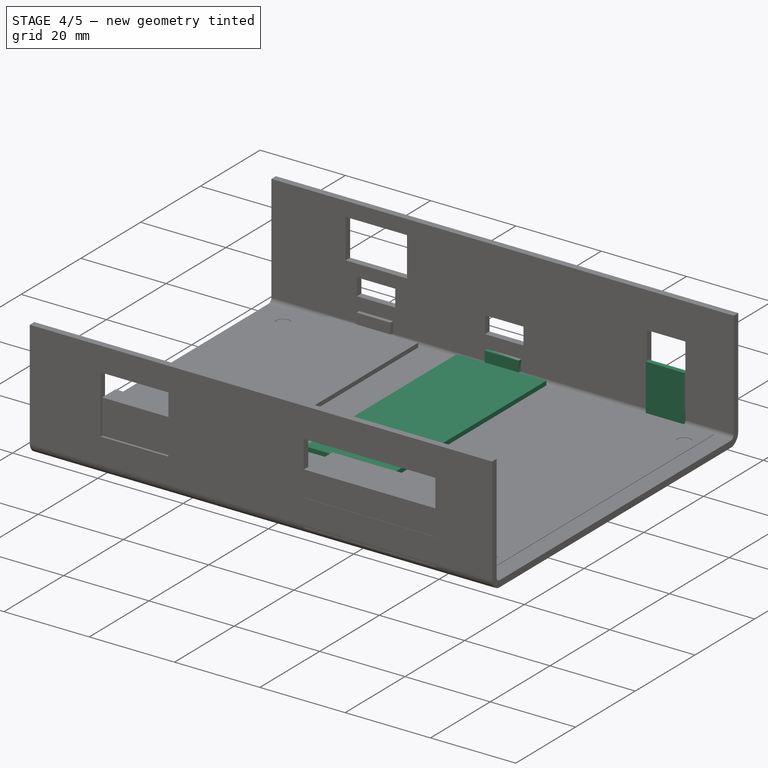
[diagram: stage 4 of 5 — iso view after this stage's code; geometry added in this stage tinted green]
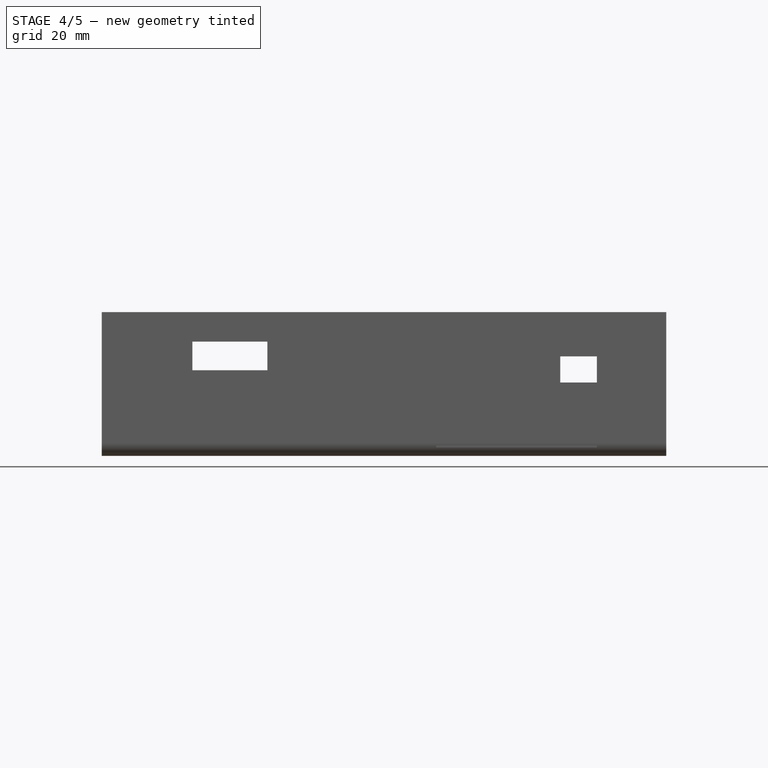
[diagram: stage 4 of 5 — front view after this stage's code; geometry added in this stage tinted green]
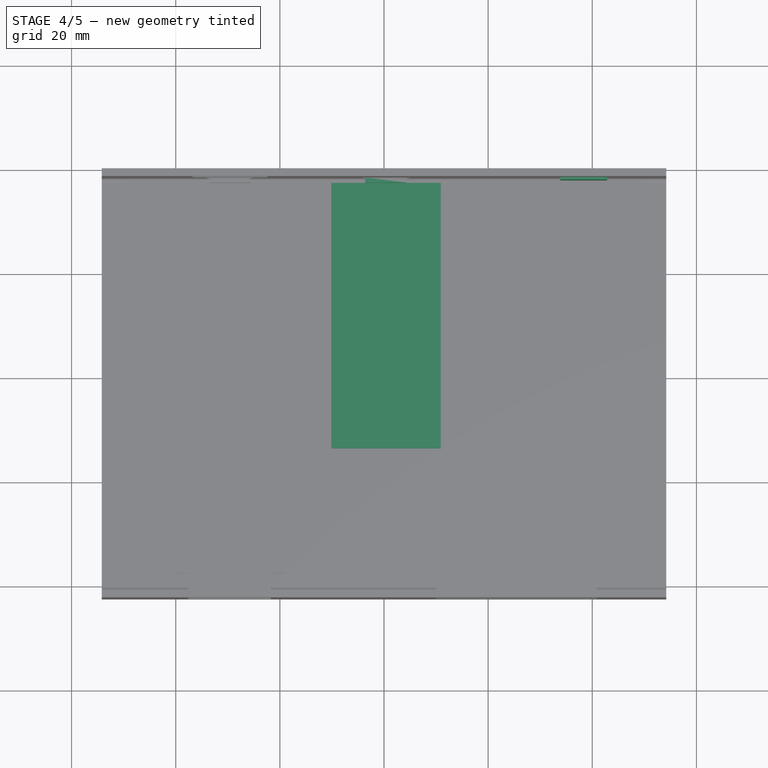
[diagram: stage 4 of 5 — top view after this stage's code; geometry added in this stage tinted green]
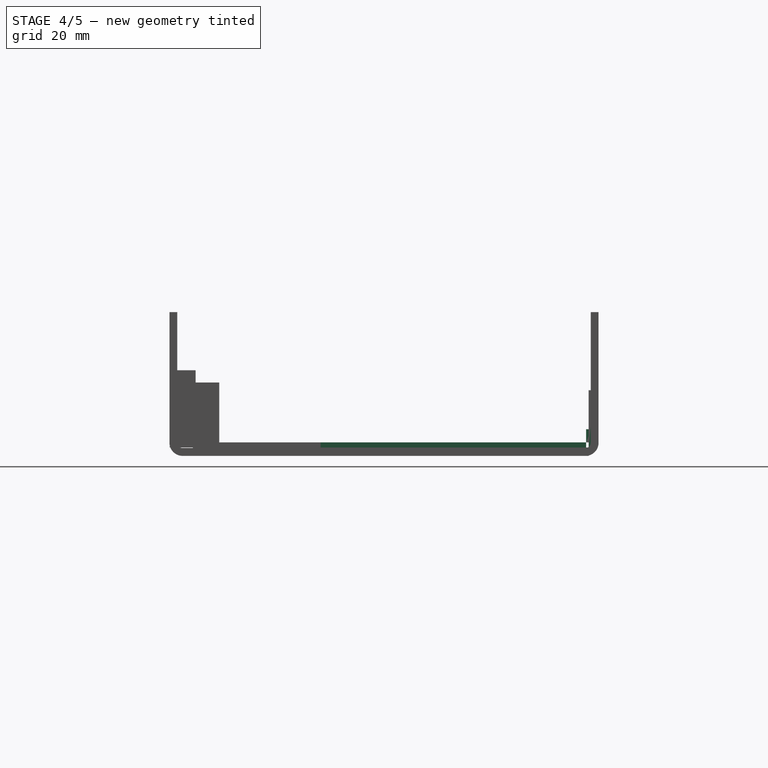
[diagram: stage 4 of 5 — right view after this stage's code; geometry added in this stage tinted green]
FEATURE [Sketcher::SketchObject] Sketch005
  AttachmentOffset = pos=(0,0,1.6) rot=(0,0,1;0rad)
  FullyConstrained = true
  MapMode = 5
  Placement = pos=(0,0,1.6) rot=(0,0,1;0rad)
  Support = -> [XY_Plane]
  expr: .AttachmentOffset.Base.z = <<fig>>.pcb_thk
  expr: Constraints[10] = <<fig>>.pcb_h / 2 - <<fig>>.w5500_top
  expr: Constraints[11] = <<fig>>.pcb_w / 2 - <<fig>>.pico_left
  expr: Constraints[8] = <<fig>>.pico_w
  expr: Constraints[9] = <<fig>>.pico_h
  sketch-geometry (4):
    g0: LineSegment StartX=-10.1 StartY=37.52 StartZ=0 EndX=10.9 EndY=37.52 EndZ=0
    g1: LineSegment StartX=10.9 StartY=37.52 StartZ=0 EndX=10.9 EndY=-13.48 EndZ=0
    g2: LineSegment StartX=10.9 StartY=-13.48 StartZ=0 EndX=-10.1 EndY=-13.48 EndZ=0
    g3: LineSegment StartX=-10.1 StartY=-13.48 StartZ=0 EndX=-10.1 EndY=37.52 EndZ=0
  constraints (12):
    c: Coincident(g0,g1)
    c: Coincident(g1,g2)
    c: Coincident(g2,g3)
    c: Coincident(g3,g0)
    c: Horizontal(g0)
    c: Horizontal(g2)
    c: Vertical(g1)
    c: Vertical(g3)
    c: DistanceX(g0,g0) = 21
    c: DistanceY(g3,g3) = 51
    c: DistanceY(g-1,g0) = 37.52
    c: DistanceX(g0,g-1) = 10.1
FEATURE [PartDesign::Pad] Pad005  label="pico-pcb"
  BaseFeature = -> Pad004
  Direction = (0,0,1)
  Length = 1
  Length2 = 10
  Profile = -> Sketch005
  ReferenceAxis = -> Sketch005 [N_Axis]
  Type = 0
  expr: Length = <<fig>>.w5500_thk
FEATURE [Sketcher::SketchObject] Sketch006
  AttachmentOffset = pos=(0,0,2.599) rot=(0,0,1;0rad)
  FullyConstrained = true
  MapMode = 5
  Placement = pos=(0,0,2.599) rot=(0,0,1;0rad)
  Support = -> [XY_Plane]
  expr: .AttachmentOffset.Base.z = <<fig>>.pcb_thk + <<fig>>.w5500_thk - 0.001
  expr: Constraints[10] = <<fig>>.pcb_w / 2 - <<fig>>.pico_left - (<<fig>>.pico_w - <<fig>>.usb_w) / 2
  expr: Constraints[11] = <<fig>>.pcb_h / 2 - <<fig>>.w5500_top
  expr: Constraints[8] = <<fig>>.usb_w
  expr: Constraints[9] = <<fig>>.usb_ext
  sketch-geometry (4):
    g0: LineSegment StartX=-3.6 StartY=38.52 StartZ=0 EndX=4.4 EndY=38.52 EndZ=0
    g1: LineSegment StartX=4.4 StartY=38.52 StartZ=0 EndX=4.4 EndY=37.52 EndZ=0
    g2: LineSegment StartX=4.4 StartY=37.52 StartZ=0 EndX=-3.6 EndY=37.52 EndZ=0
    g3: LineSegment StartX=-3.6 StartY=37.52 StartZ=0 EndX=-3.6 EndY=38.52 EndZ=0
  constraints (12):
    c: Coincident(g0,g1)
    c: Coincident(g1,g2)
    c: Coincident(g2,g3)
    c: Coincident(g3,g0)
    c: Horizontal(g0)
    c: Horizontal(g2)
    c: Vertical(g1)
    c: Vertical(g3)
    c: DistanceX(g0,g0) = 8
    c: DistanceY(g1,g1) = 1
    c: DistanceX(g2,g-1) = 3.6
    c: DistanceY(g-1,g2) = 37.52
FEATURE [PartDesign::Pad] Pad006  label="pico-usb"
  BaseFeature = -> Pad005
  Direction = (0,0,1)
  Length = 2.5
  Length2 = 10
  Profile = -> Sketch006
  ReferenceAxis = -> Sketch006 [N_Axis]
  Type = 0
  expr: Length = <<fig>>.usb_bottom_margin + <<fig>>.usb_h
FEATURE [Sketcher::SketchObject] Sketch007
  AttachmentOffset = pos=(0,0,1.599) rot=(0,0,1;0rad)
  FullyConstrained = true
  MapMode = 5
  Placement = pos=(0,0,1.599) rot=(0,0,1;0rad)
  Support = -> [XY_Plane]
  expr: .AttachmentOffset.Base.z = <<fig>>.pcb_thk - 0.001
  expr: Constraints[10] = <<fig>>.pcb_w / 2 - <<fig>>.barrel_right - <<fig>>.barrel_w
  expr: Constraints[11] = <<fig>>.pcb_h / 2
  expr: Constraints[8] = <<fig>>.barrel_w
  expr: Constraints[9] = <<fig>>.barrel_ext
  sketch-geometry (4):
    g0: LineSegment StartX=33.85 StartY=39.1 StartZ=0 EndX=42.85 EndY=39.1 EndZ=0
    g1: LineSegment StartX=42.85 StartY=39.1 StartZ=0 EndX=42.85 EndY=38 EndZ=0
    g2: LineSegment StartX=42.85 StartY=38 StartZ=0 EndX=33.85 EndY=38 EndZ=0
    g3: LineSegment StartX=33.85 StartY=38 StartZ=0 EndX=33.85 EndY=39.1 EndZ=0
  constraints (12):
    c: Coincident(g0,g1)
    c: Coincident(g1,g2)
    c: Coincident(g2,g3)
    c: Coincident(g3,g0)
    c: Horizontal(g0)
    c: Horizontal(g2)
    c: Vertical(g1)
    c: Vertical(g3)
    c: DistanceX(g0,g0) = 9
    c: DistanceY(g3,g3) = 1.1
    c: DistanceX(g-1,g2) = 33.85
    c: DistanceY(g-1,g2) = 38
FEATURE [PartDesign::Pad] Pad007  label="barrel-jack"
  BaseFeature = -> Pad006
  Direction = (0,0,1)
  Length = 11
  Length2 = 10
  Profile = -> Sketch007
  ReferenceAxis = -> Sketch007 [N_Axis]
  Type = 0
  expr: Length = <<fig>>.barrel_h
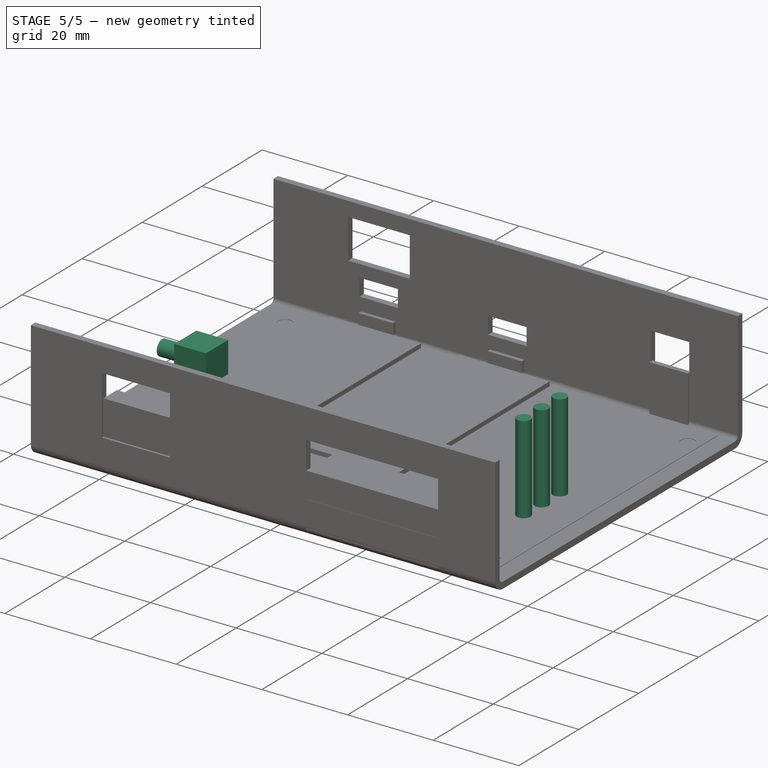
[diagram: stage 5 of 5 — iso view after this stage's code; geometry added in this stage tinted green]
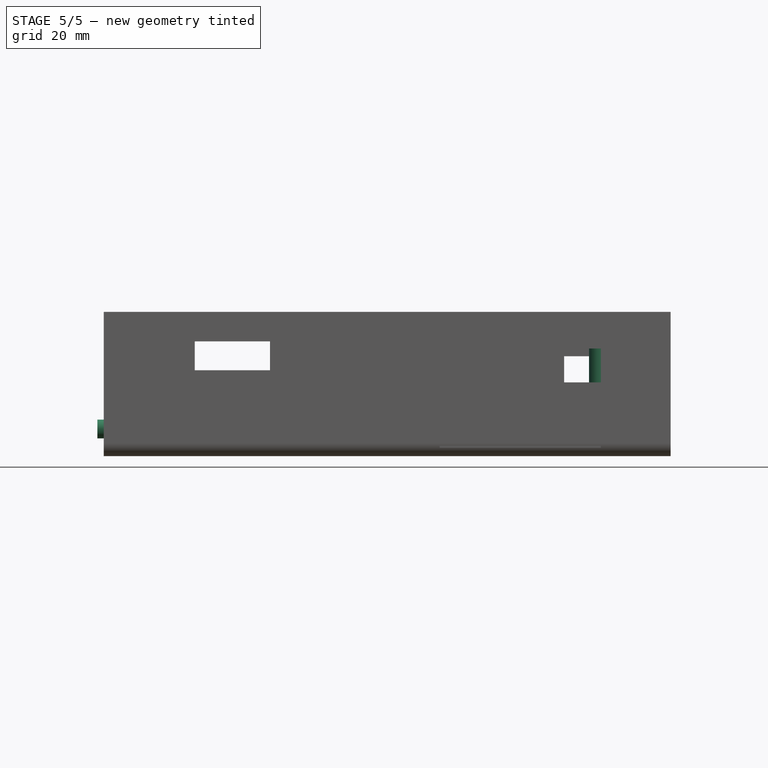
[diagram: stage 5 of 5 — front view after this stage's code; geometry added in this stage tinted green]
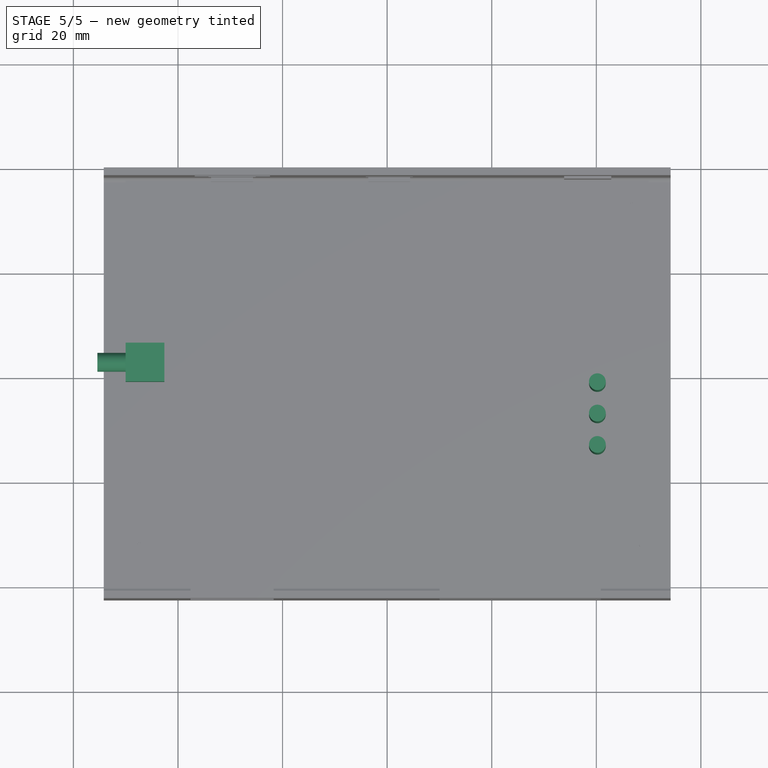
[diagram: stage 5 of 5 — top view after this stage's code; geometry added in this stage tinted green]
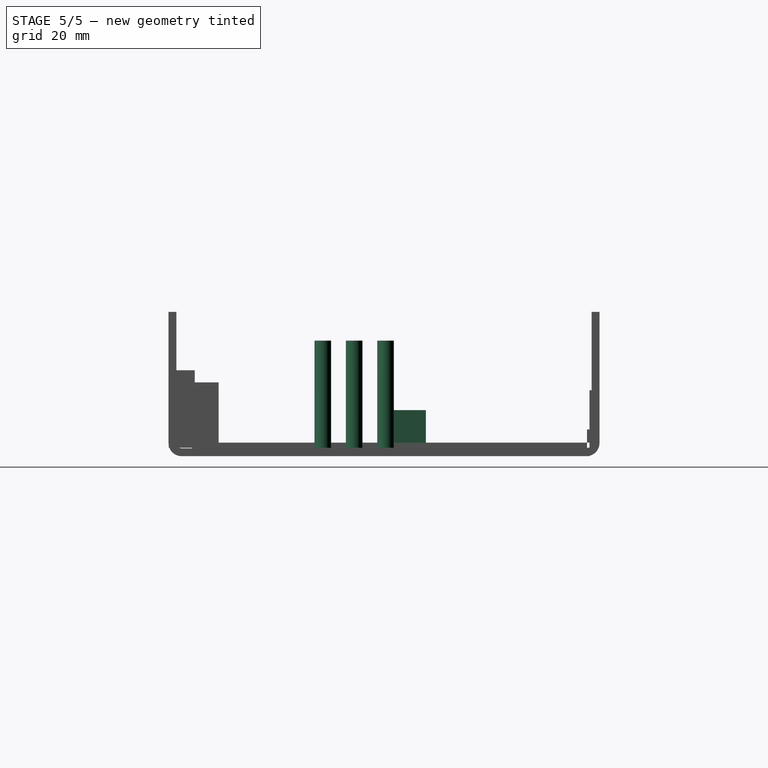
[diagram: stage 5 of 5 — right view after this stage's code; geometry added in this stage tinted green]
FEATURE [Sketcher::SketchObject] Sketch008
  AttachmentOffset = pos=(0,0,1.6) rot=(0,0,1;0rad)
  FullyConstrained = true
  MapMode = 5
  Placement = pos=(0,0,1.6) rot=(0,0,1;0rad)
  Support = -> [XY_Plane]
  expr: .AttachmentOffset.Base.z = <<fig>>.pcb_thk
  expr: Constraints[10] = <<fig>>.pcb_h / 2 - <<fig>>.pb_top
  expr: Constraints[11] = <<fig>>.pcb_w / 2
  expr: Constraints[8] = <<fig>>.pb_w
  expr: Constraints[9] = <<fig>>.pb_h
  sketch-geometry (4):
    g0: LineSegment StartX=-50 StartY=6.7 StartZ=0 EndX=-42.6 EndY=6.7 EndZ=0
    g1: LineSegment StartX=-42.6 StartY=6.7 StartZ=0 EndX=-42.6 EndY=-0.7 EndZ=0
    g2: LineSegment StartX=-42.6 StartY=-0.7 StartZ=0 EndX=-50 EndY=-0.7 EndZ=0
    g3: LineSegment StartX=-50 StartY=-0.7 StartZ=0 EndX=-50 EndY=6.7 EndZ=0
  constraints (12):
    c: Coincident(g0,g1)
    c: Coincident(g1,g2)
    c: Coincident(g2,g3)
    c: Coincident(g3,g0)
    c: Horizontal(g0)
    c: Horizontal(g2)
    c: Vertical(g1)
    c: Vertical(g3)
    c: DistanceX(g0,g0) = 7.4
    c: DistanceY(g3,g3) = 7.4
    c: DistanceY(g-1,g0) = 6.7
    c: DistanceX(g2,g-1) = 50
FEATURE [PartDesign::Pad] Pad008  label="push-button"
  BaseFeature = -> Pad007
  Direction = (0,0,1)
  Length = 7.2
  Length2 = 10
  Profile = -> Sketch008
  ReferenceAxis = -> Sketch008 [N_Axis]
  Type = 0
  expr: Length = <<fig>>.pb_tall
FEATURE [Sketcher::SketchObject] Sketch009
  AttachmentOffset = pos=(0,0,-50) rot=(0,0,1;0rad)
  FullyConstrained = true
  MapMode = 5
  Placement = pos=(-50,1.11e-14,-1.11e-14) rot=(0.57735,0.57735,0.57735;2.0944rad)
  Support = -> [YZ_Plane]
  expr: .AttachmentOffset.Base.z = -<<fig>>.pcb_w2
  expr: Constraints[0] = <<fig>>.pb_r
  expr: Constraints[1] = <<fig>>.pcb_thk + <<fig>>.pb_tall / 2
  expr: Constraints[2] = <<fig>>.pcb_h2 - <<fig>>.pb_top - <<fig>>.pb_h / 2
  sketch-geometry (1):
    g0: Circle CenterX=3 CenterY=5.2 CenterZ=0 NormalX=0 NormalY=0 NormalZ=1 AngleXU=0 Radius=1.8
  constraints (3):
    c: Radius(g0) = 1.8
    c: DistanceY(g-1,g0) = 5.2
    c: DistanceX(g-1,g0) = 3
FEATURE [PartDesign::Pad] Pad009
  BaseFeature = -> Pad008
  Direction = (1,-2e-16,3e-16)
  Length = 5.4
  Length2 = 10
  Profile = -> Sketch009
  ReferenceAxis = -> Sketch009 [N_Axis]
  Reversed = true
  Type = 0
  expr: Length = <<fig>>.pb_ext
FEATURE [Sketcher::SketchObject] Sketch010
  AttachmentOffset = pos=(0,0,1.6) rot=(0,0,1;0rad)
  FullyConstrained = true
  MapMode = 5
  Placement = pos=(0,0,1.6) rot=(0,0,1;0rad)
  Support = -> [XY_Plane]
  expr: .AttachmentOffset.Base.z = <<fig>>.pcb_thk
  expr: Constraints[0] = <<fig>>.led_r
  expr: Constraints[3] = <<fig>>.pcb_w2 - <<fig>>.led_right
  expr: Constraints[6] = <<fig>>.pcb_h2 - <<fig>>.led1_bottom
  expr: Constraints[7] = <<fig>>.led_dist
  expr: Constraints[8] = <<fig>>.led_dist
  sketch-geometry (3):
    g0: Circle CenterX=40.2 CenterY=-1 CenterZ=0 NormalX=0 NormalY=0 NormalZ=1 AngleXU=0 Radius=1.6
    g1: Circle CenterX=40.2 CenterY=-7 CenterZ=0 NormalX=0 NormalY=0 NormalZ=1 AngleXU=0 Radius=1.6
    g2: Circle CenterX=40.2 CenterY=-13 CenterZ=0 NormalX=0 NormalY=0 NormalZ=1 AngleXU=0 Radius=1.6
  constraints (9):
    c: Radius(g0) = 1.6
    c: Equal(g0,g1)
    c: Equal(g1,g2)
    c: DistanceX(g-1,g0) = 40.2
    c: Vertical(g0,g1)
    c: Vertical(g1,g2)
    c: DistanceY(g0,g-1) = 1
    c: DistanceY(g1,g0) = 6
    c: DistanceY(g2,g1) = 6
FEATURE [PartDesign::Pad] Pad010
  BaseFeature = -> Pad009
  Direction = (0,0,1)
  Length = 20.5
  Length2 = 10
  Profile = -> Sketch010
  ReferenceAxis = -> Sketch010 [N_Axis]
  Type = 0
  expr: Length = <<fig>>.led_tall
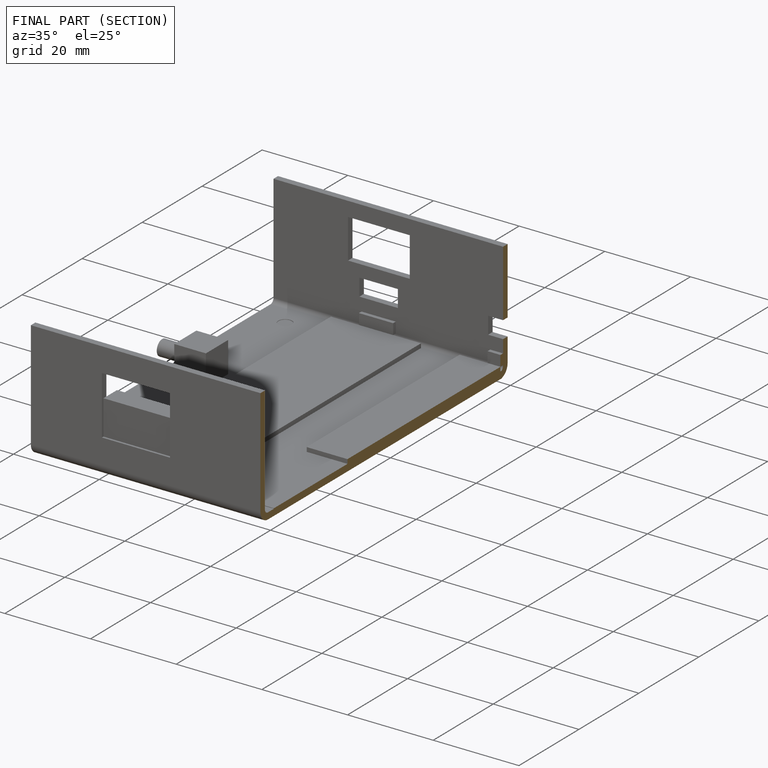
[diagram: finished part — half-section view (interior)]
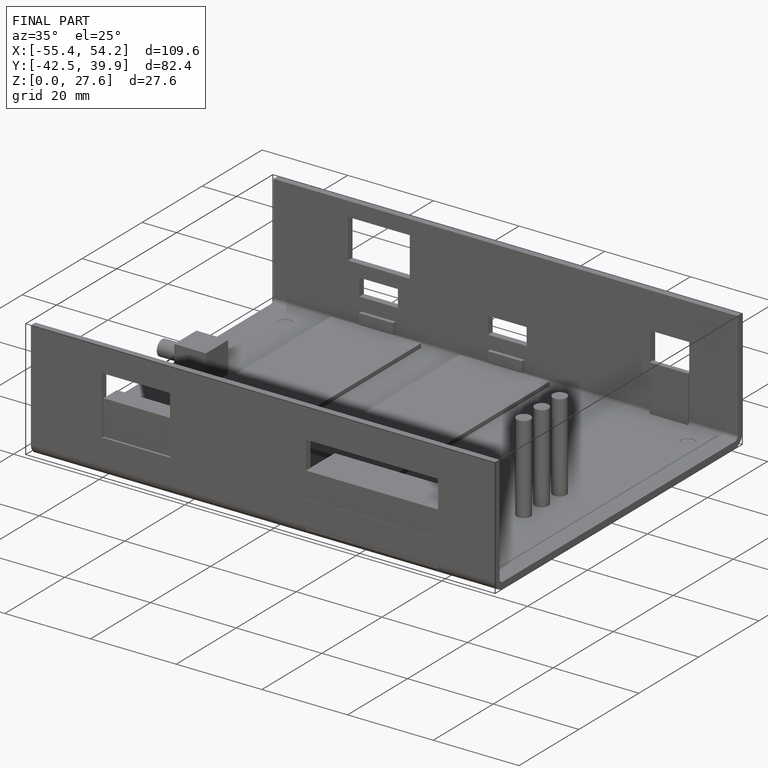
[diagram: finished part — iso view with bounding-box wireframe]
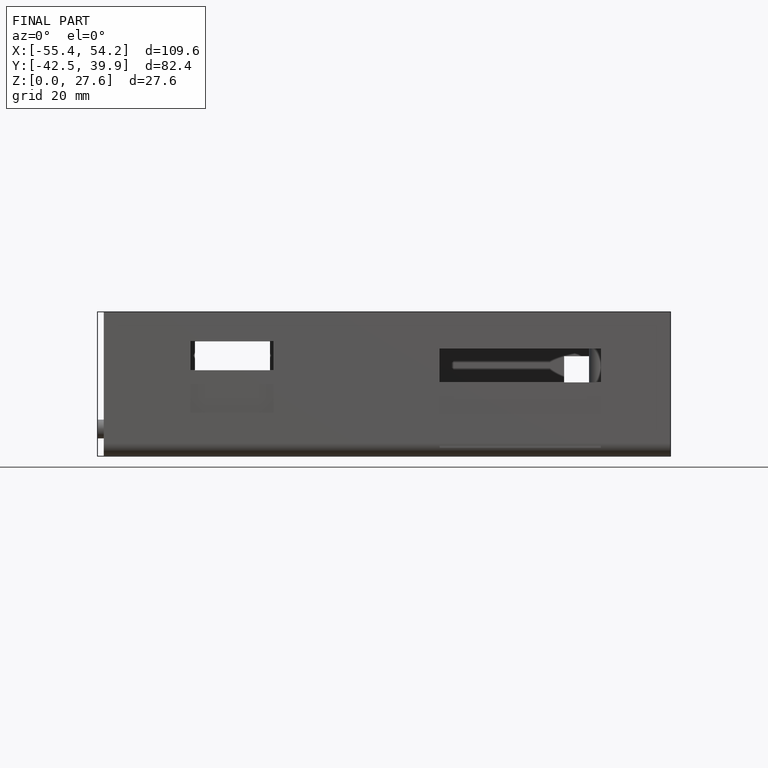
[diagram: finished part — front view with bounding-box wireframe]
